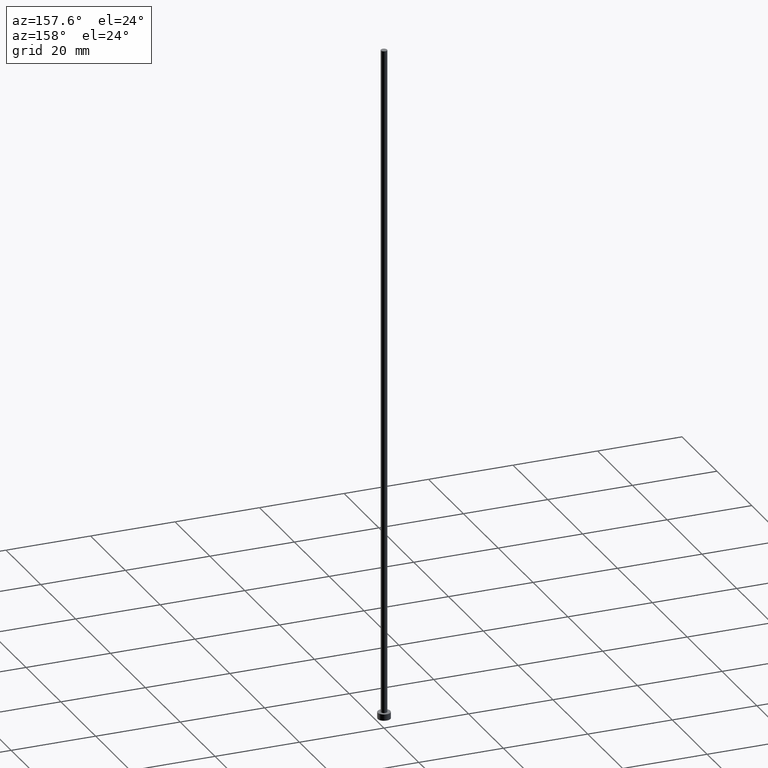
[diagram: clean part render]
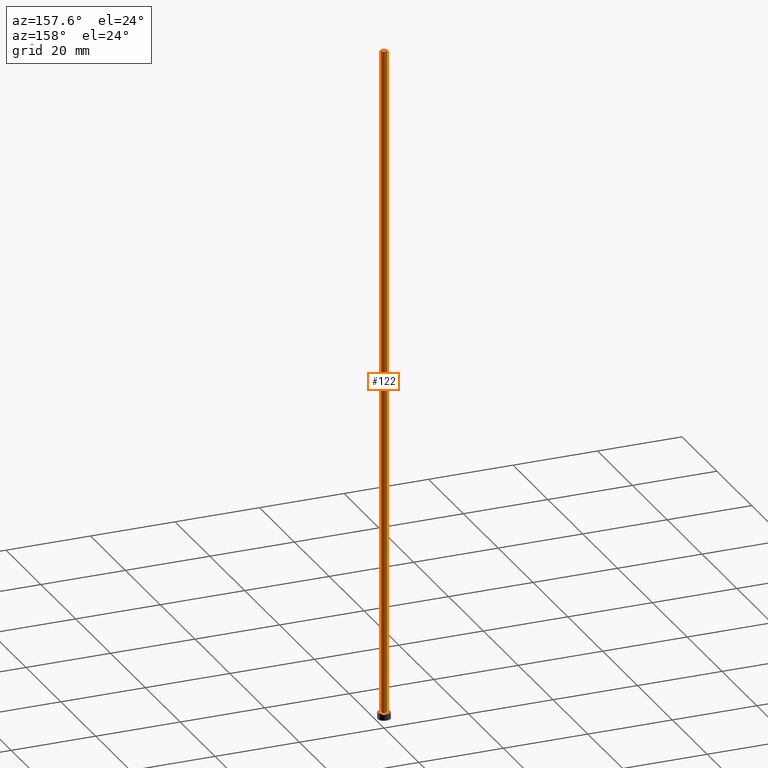
[diagram: same view with one face highlighted and labeled with its STEP entity id]
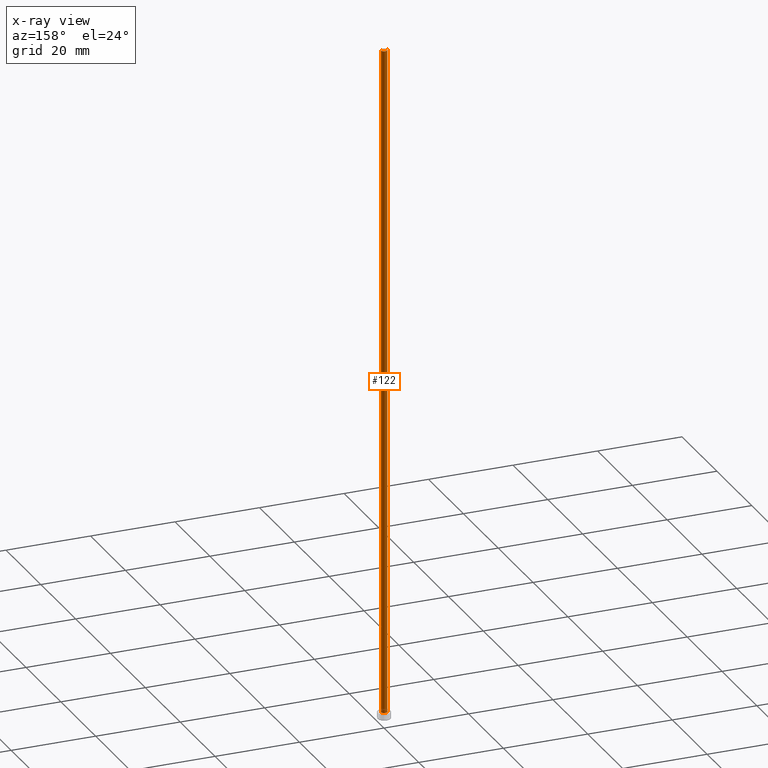
[diagram: x-ray of the same camera — body ghosted, the highlighted face saturated]
A machine part, auxiliary view. The second image highlights one B-rep face of the part: STEP entity #122.
The next image is the same camera in x-ray: the body ghosted, the highlighted face saturated — about 0% of this face is hidden behind the body in this view.
In plain terms, the highlighted cylindrical surface (edge-blend (fillet) strip) has radius 0.75 mm, axis along (-0, -0, -1).
Its self-contained STEP definition (entity closure, byte-faithful):
#1 = EDGE_LOOP ( 'NONE', ( #150, #152, #93, #189 ) ) ;
#21 = CARTESIAN_POINT ( 'NONE',  ( -0.7500000000000001110, 0.000000000000000000, 160.0000000000000000 ) ) ;
#28 = VECTOR ( 'NONE', #66, 1000.000000000000000 ) ;
#33 = AXIS2_PLACEMENT_3D ( 'NONE', #164, #69, #124 ) ;
#36 = DIRECTION ( 'NONE',  ( 0.000000000000000000, 0.000000000000000000, 1.000000000000000000 ) ) ;
#43 = DIRECTION ( 'NONE',  ( -0.000000000000000000, -0.000000000000000000, -1.000000000000000000 ) ) ;
#66 = DIRECTION ( 'NONE',  ( -0.000000000000000000, -0.000000000000000000, -1.000000000000000000 ) ) ;
#67 = FACE_OUTER_BOUND ( 'NONE', #1, .T. ) ;
#69 = DIRECTION ( 'NONE',  ( 0.000000000000000000, 0.000000000000000000, 1.000000000000000000 ) ) ;
#82 = VERTEX_POINT ( 'NONE', #222 ) ;
#93 = ORIENTED_EDGE ( 'NONE', *, *, #102, .T. ) ;
#102 = EDGE_CURVE ( 'NONE', #145, #82, #163, .T. ) ;
#103 = CYLINDRICAL_SURFACE ( 'NONE', #116, 0.7500000000000001110 ) ;
#115 = CARTESIAN_POINT ( 'NONE',  ( 0.7500000000000001110, 9.184850993605150903E-17, 1.500000000000000000 ) ) ;
#116 = AXIS2_PLACEMENT_3D ( 'NONE', #142, #144, #141 ) ;
#117 = EDGE_CURVE ( 'NONE', #230, #145, #223, .T. ) ;
#122 = ADVANCED_FACE ( 'NONE', ( #67 ), #103, .T. ) ;
#124 = DIRECTION ( 'NONE',  ( 1.000000000000000000, 0.000000000000000000, 0.000000000000000000 ) ) ;
#141 = DIRECTION ( 'NONE',  ( -1.000000000000000000, 0.000000000000000000, 0.000000000000000000 ) ) ;
#142 = CARTESIAN_POINT ( 'NONE',  ( 0.000000000000000000, 0.000000000000000000, 160.0000000000000000 ) ) ;
#144 = DIRECTION ( 'NONE',  ( -0.000000000000000000, -0.000000000000000000, -1.000000000000000000 ) ) ;
#145 = VERTEX_POINT ( 'NONE', #115 ) ;
#150 = ORIENTED_EDGE ( 'NONE', *, *, #184, .F. ) ;
#152 = ORIENTED_EDGE ( 'NONE', *, *, #117, .T. ) ;
#163 = CIRCLE ( 'NONE', #209, 0.7500000000000001110 ) ;
#164 = CARTESIAN_POINT ( 'NONE',  ( 0.000000000000000000, 0.000000000000000000, 160.0000000000000000 ) ) ;
#182 = DIRECTION ( 'NONE',  ( 1.000000000000000000, 0.000000000000000000, 0.000000000000000000 ) ) ;
#184 = EDGE_CURVE ( 'NONE', #230, #248, #217, .T. ) ;
#189 = ORIENTED_EDGE ( 'NONE', *, *, #235, .F. ) ;
#191 = LINE ( 'NONE', #207, #225 ) ;
#203 = CARTESIAN_POINT ( 'NONE',  ( 0.000000000000000000, 0.000000000000000000, 1.500000000000000000 ) ) ;
#207 = CARTESIAN_POINT ( 'NONE',  ( -0.7500000000000001110, 0.000000000000000000, 160.0000000000000000 ) ) ;
#209 = AXIS2_PLACEMENT_3D ( 'NONE', #203, #36, #182 ) ;
#210 = CARTESIAN_POINT ( 'NONE',  ( 0.7500000000000001110, 9.184850993605150903E-17, 160.0000000000000000 ) ) ;
#217 = CIRCLE ( 'NONE', #33, 0.7500000000000001110 ) ;
#222 = CARTESIAN_POINT ( 'NONE',  ( -0.7500000000000001110, 0.000000000000000000, 1.500000000000000000 ) ) ;
#223 = LINE ( 'NONE', #245, #28 ) ;
#225 = VECTOR ( 'NONE', #43, 1000.000000000000000 ) ;
#230 = VERTEX_POINT ( 'NONE', #210 ) ;
#235 = EDGE_CURVE ( 'NONE', #248, #82, #191, .T. ) ;
#245 = CARTESIAN_POINT ( 'NONE',  ( 0.7500000000000001110, 9.184850993605150903E-17, 160.0000000000000000 ) ) ;
#248 = VERTEX_POINT ( 'NONE', #21 ) ;